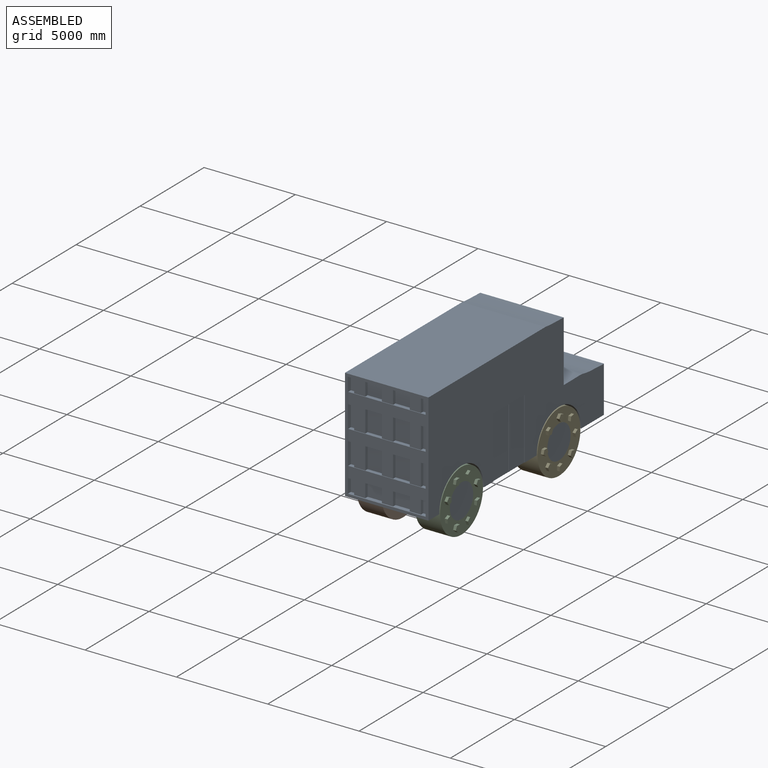
[diagram: assembled view]
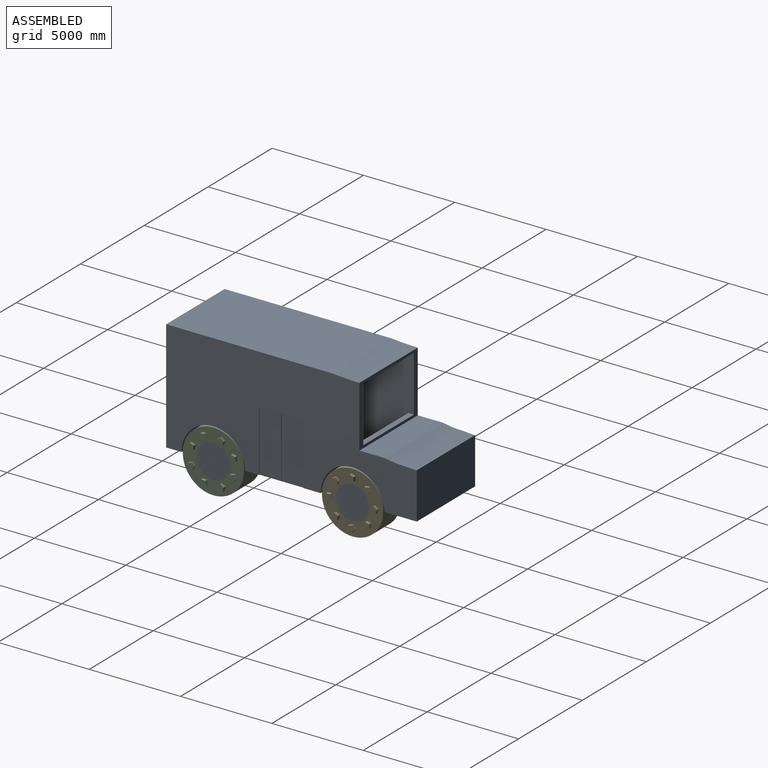
[diagram: assembled view, second angle]
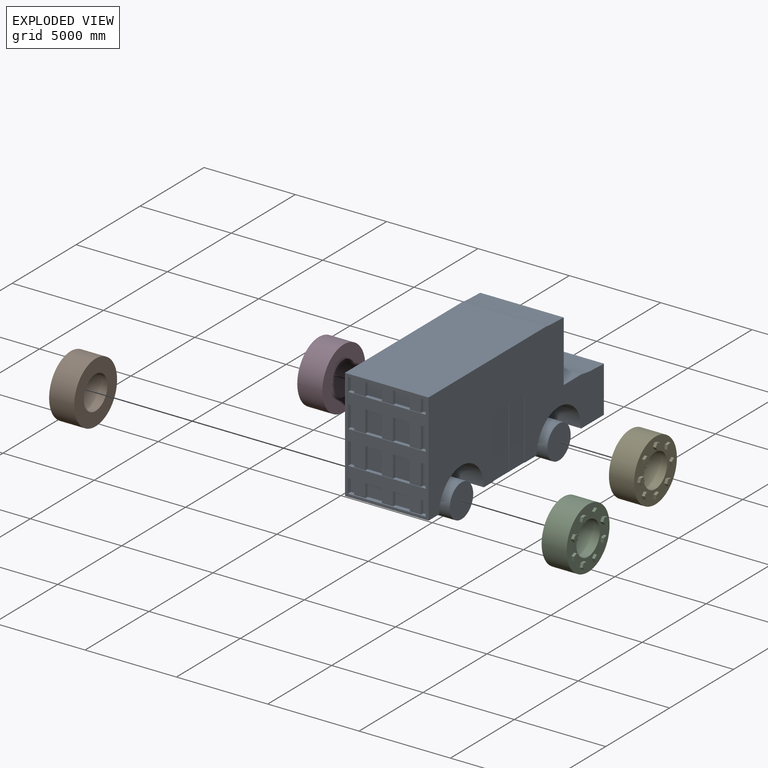
[diagram: exploded view]
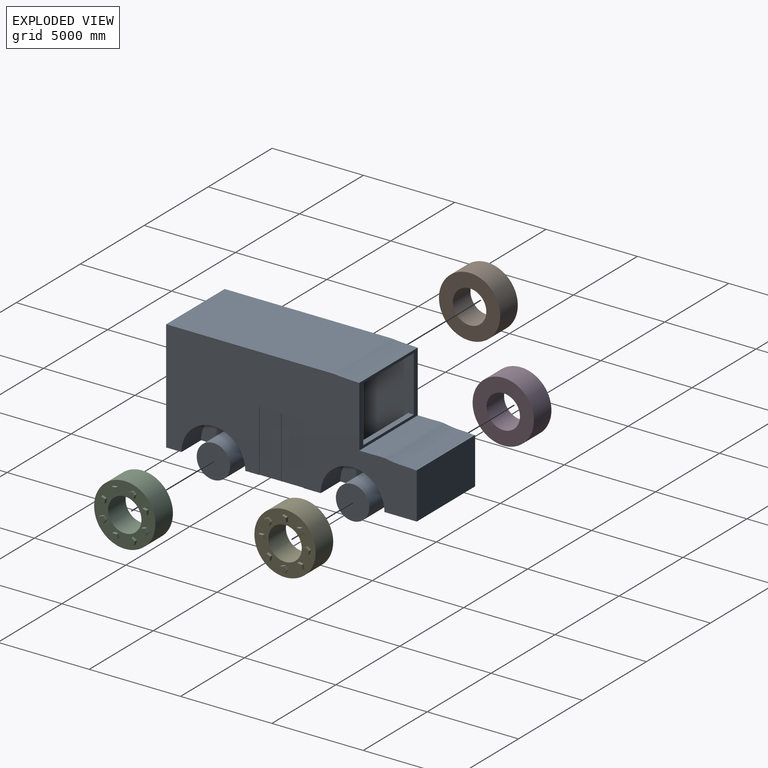
[diagram: exploded view, second angle]
ASSEMBLY  parts=5 mates=4
PART A: 134 faces, bbox 4572x13726.5x7039.7 mm
  f0: plane 1219.2x304.8mm, normal (0,-1,0), area 371612.2mm2, adj f14,f17,f92,f130
  f1: plane 1219.2x304.8mm, normal (0,-1,0), area 371612.2mm2, adj f15,f18,f92,f127
  f2: plane 762x304.8mm, normal (0,-1,0), area 232257.6mm2, adj f4,f13,f92,f131
  f3: plane 762x304.8mm, normal (0,-1,0), area 232257.6mm2, adj f16,f92,f93,f124
  f4: plane 4267.2x243.84mm, normal (0,0,-1), area 706063.1mm2, adj f2,f7,f11,f20,f22,f23,f92,f107
  f5: plane 1219.2x914.4mm, normal (0,-1,0), area 1114836.5mm2, adj f14,f17,f118,f129
  f6: plane 1219.2x914.4mm, normal (0,-1,0), area 1114836.5mm2, adj f15,f18,f115,f126
  f7: plane 914.4x762mm, normal (0,-1,0), area 696772.8mm2, adj f4,f13,f119,f132
  f8: plane 914.4x762mm, normal (0,-1,0), area 696772.8mm2, adj f16,f93,f112,f123
  f9: plane 1219.2x914.4mm, normal (0,-1,0), area 1114836.5mm2, adj f14,f17,f102,f117
  f10: plane 1219.2x914.4mm, normal (0,-1,0), area 1114836.5mm2, adj f15,f18,f99,f114
  f11: plane 914.4x762mm, normal (0,-1,0), area 696772.8mm2, adj f4,f13,f108,f120
  f12: plane 914.4x762mm, normal (0,-1,0), area 696772.8mm2, adj f16,f93,f105,f111
  f13: plane 4267.2x213.36mm, normal (0,0,1), area 575998.8mm2, adj f2,f7,f11,f20,f22,f92,f95,f107
  f14: plane 4267.2x213.36mm, normal (0,0,-1), area 575998.8mm2, adj f0,f5,f9,f19,f20,f92,f95,f101
  f15: plane 4267.2x213.36mm, normal (0,0,1), area 575998.8mm2, adj f1,f6,f10,f20,f21,f92,f96,f98
  f16: plane 4267.2x213.36mm, normal (0,0,-1), area 575998.8mm2, adj f3,f8,f12,f20,f92,f94,f96,f104
  f17: plane 4267.2x213.36mm, normal (0,0,1), area 575998.8mm2, adj f0,f5,f9,f19,f20,f92,f97,f101
  f18: plane 4267.2x213.36mm, normal (0,0,-1), area 575998.8mm2, adj f1,f6,f10,f20,f21,f92,f97,f98
  f19: plane 1219.2x304.8mm, normal (0,-1,0), area 371612.2mm2, adj f14,f17,f20,f103
  f20: plane 5791.2x243.84mm, normal (1,0,0), area 1021933.4mm2, adj f4,f13,f14,f15,f16,f17,f18,f19
  f21: plane 1219.2x304.8mm, normal (0,-1,0), area 371612.2mm2, adj f15,f18,f20,f100
  f22: plane 762x304.8mm, normal (0,-1,0), area 232257.6mm2, adj f4,f13,f20,f107
  f23: plane 6096x4572mm, normal (0,-1,0), area 3158703.4mm2, adj f4,f20,f26,f27,f61,f65,f92,f93
  f24: plane 1218.81x30.48mm, normal (0,0,-1), area 37149.3mm2, adj f26,f87,f88,f91
  f25: plane 3352.8x1219.2mm, normal (1,0,0), area 4087737.4mm2, adj f27,f86,f89,f90
  f26: plane 13726.52x6125.28mm, normal (1,0,0), area 54902468.1mm2, adj f23,f24,f27,f60,f61,f62,f68,f69
  f27: plane 13716x4572mm, normal (0,0,-1), area 41379025.9mm2, adj f23,f25,f26,f62,f63,f64,f65,f66
  f28: plane 3962.4x454.37mm, normal (0,-1,0), area 1800387.9mm2, adj f29,f34,f55,f59
  f29: plane 13106.4x5566.17mm, normal (-1,0,0), area 51219200.6mm2, adj f28,f30,f31,f37,f38,f39,f40,f55
  f30: plane 8833.9x3962.4mm, normal (0,0,-1), area 35003456mm2, adj f29,f34,f38,f56
  f31: plane 3962.4x1931mm, normal (0,-1,0), area 7651385.6mm2, adj f29,f34,f37,f55
  f32: plane 4050.9x1743.46mm, normal (1,0,0), area 5117812.8mm2, adj f37,f47,f53
  f33: plane 4050.9x1743.46mm, normal (1,0,0), area 5117812.8mm2, adj f37,f48,f50
  f34: plane 13106.4x5566.17mm, normal (1,0,0), area 51219200.6mm2, adj f28,f30,f31,f37,f38,f47,f48,f55
  f35: plane 4050.9x1743.46mm, normal (-1,0,0), area 5117812.8mm2, adj f37,f39,f44
  f36: plane 4050.9x1743.46mm, normal (-1,0,0), area 5117812.8mm2, adj f37,f40,f41
  f37: plane 13106.4x3962.4mm, normal (0,0,1), area 29813111.8mm2, adj f29,f31,f32,f33,f34,f35,f36,f38
  f38: plane 5486.4x3962.4mm, normal (0,1,0), area 21739311.4mm2, adj f29,f30,f34,f37
  f39: cylinder r=2048.26mm len=4050.9mm, axis (1,0,0), area 8874120.1mm2, adj f29,f35,f37
  f40: cylinder r=2048.26mm len=4050.9mm, axis (1,0,0), area 8874120.1mm2, adj f29,f36,f37
  f41: cylinder r=609.6mm len=1524mm, axis (-1,0,0), area 4280664.8mm2, adj f36,f37,f42,f43
  f42: plane 1219.2x1219.2mm, normal (-1,0,0), area 1167454mm2, adj f41
  f43: plane 1219.2x914.4mm, normal (1,0,0), area 939215.5mm2, adj f37,f41
  f44: cylinder r=609.6mm len=1524mm, axis (-1,0,0), area 4280664.8mm2, adj f35,f37,f45,f46
  f45: plane 1219.2x1219.2mm, normal (-1,0,0), area 1167454mm2, adj f44
  f46: plane 1219.2x914.4mm, normal (1,0,0), area 939215.5mm2, adj f37,f44
  f47: cylinder r=2048.26mm len=4050.9mm, axis (-1,0,0), area 8874120.1mm2, adj f32,f34,f37
  f48: cylinder r=2048.26mm len=4050.9mm, axis (-1,0,0), area 8874120.1mm2, adj f33,f34,f37
  f49: plane 1219.2x914.4mm, normal (-1,0,0), area 939215.5mm2, adj f37,f50
  f50: cylinder r=609.6mm len=1524mm, axis (1,0,0), area 4280664.8mm2, adj f33,f37,f49,f51
  f51: plane 1219.2x1219.2mm, normal (1,0,0), area 1167454mm2, adj f50
  f52: plane 1219.2x914.4mm, normal (-1,0,0), area 939215.5mm2, adj f37,f53
  f53: cylinder r=609.6mm len=1524mm, axis (1,0,0), area 4280664.8mm2, adj f32,f37,f52,f54
  f54: plane 1219.2x1219.2mm, normal (1,0,0), area 1167454mm2, adj f53
  f55: extruded ~3962.4x3142.39mm, area 12534919.1mm2, adj f28,f29,f31,f34
  f56: extruded ~3962.4x1130.11mm, area 4487176.9mm2, adj f29,f30,f34,f57
  f57: plane 3962.4x147.22mm, normal (0,1,0), area 583361.9mm2, adj f29,f34,f56,f58
  f58: plane 3962.4x304.8mm, normal (0,0,-1), area 1207739.5mm2, adj f29,f34,f57,f60
  f59: plane 3962.4x304.8mm, normal (0,0,1), area 1207739.5mm2, adj f28,f29,f34,f60
  f60: plane 4572x3347.66mm, normal (0,1,0), area 3228121.5mm2, adj f26,f29,f34,f58,f59,f65,f84,f85
  f61: plane 9157.11x4572mm, normal (0,0,1), area 41866296mm2, adj f23,f26,f65,f85
  f62: plane 4572x2536.82mm, normal (0,1,0), area 11598339mm2, adj f26,f27,f65,f84
  f63: plane 3486.91x1743.46mm, normal (-1,0,0), area 3461267.7mm2, adj f27,f76,f82
  f64: plane 3486.91x1743.46mm, normal (-1,0,0), area 3461267.7mm2, adj f27,f77,f79
  f65: plane 13726.52x6125.28mm, normal (-1,0,0), area 63076624.6mm2, adj f23,f27,f60,f61,f62,f76,f77,f84
  f66: plane 3486.91x1743.46mm, normal (1,0,0), area 3461267.7mm2, adj f27,f68,f73
  f67: plane 3486.91x1743.46mm, normal (1,0,0), area 3461267.7mm2, adj f27,f69,f70
  f68: cylinder r=1743.46mm len=3486.91mm, axis (1,0,0), area 8347296.3mm2, adj f26,f27,f66
  f69: cylinder r=1743.46mm len=3486.91mm, axis (1,0,0), area 8347296.3mm2, adj f26,f27,f67
  f70: cylinder r=914.4mm len=1828.8mm, axis (-1,0,0), area 8755905.2mm2, adj f67,f71,f72
  f71: plane 1828.8x1828.8mm, normal (1,0,0), area 2626771.6mm2, adj f70
  f72: plane 1828.8x914.4mm, normal (-1,0,0), area 1313385.8mm2, adj f27,f70
  f73: cylinder r=914.4mm len=1828.8mm, axis (-1,0,0), area 8755905.2mm2, adj f66,f74,f75
  f74: plane 1828.8x1828.8mm, normal (1,0,0), area 2626771.6mm2, adj f73
  f75: plane 1828.8x914.4mm, normal (-1,0,0), area 1313385.8mm2, adj f27,f73
  f76: cylinder r=1743.46mm len=3486.91mm, axis (-1,0,0), area 8347296.3mm2, adj f27,f63,f65
  f77: cylinder r=1743.46mm len=3486.91mm, axis (-1,0,0), area 8347296.3mm2, adj f27,f64,f65
  f78: plane 1828.8x914.4mm, normal (1,0,0), area 1313385.8mm2, adj f27,f79
  f79: cylinder r=914.4mm len=1828.8mm, axis (1,0,0), area 8755905.2mm2, adj f64,f78,f80
  f80: plane 1828.8x1828.8mm, normal (-1,0,0), area 2626771.6mm2, adj f79
  f81: plane 1828.8x914.4mm, normal (1,0,0), area 1313385.8mm2, adj f27,f82
  f82: cylinder r=914.4mm len=1828.8mm, axis (1,0,0), area 8755905.2mm2, adj f63,f81,f83
  f83: plane 1828.8x1828.8mm, normal (-1,0,0), area 2626771.6mm2, adj f82
  f84: extruded ~4572x3142.39mm, area 14375402.7mm2, adj f26,f60,f62,f65
  f85: extruded ~4572x1416.5mm, area 6487571.1mm2, adj f26,f60,f61,f65
  f86: plane 1219.2x30.48mm, normal (0,0,-1), area 37161.2mm2, adj f25,f26,f89,f90
  f87: plane 3352.8x30.48mm, normal (0,-1,0), area 102193.3mm2, adj f24,f26,f27,f88
  f88: plane 3352.8x1218.81mm, normal (1,0,0), area 4086419.1mm2, adj f24,f27,f87,f91
  f89: plane 3352.8x30.48mm, normal (0,1,0), area 102193.3mm2, adj f25,f26,f27,f86
  f90: plane 3352.8x30.48mm, normal (0,-1,0), area 102193.3mm2, adj f25,f26,f27,f86
  f91: plane 3352.8x30.48mm, normal (0,1,0), area 102193.3mm2, adj f24,f26,f27,f88
  f92: plane 5791.2x243.84mm, normal (-1,0,0), area 1021933.4mm2, adj f0,f1,f2,f3,f4,f13,f14,f15
  f93: plane 4267.2x243.84mm, normal (0,0,1), area 706063.1mm2, adj f3,f8,f12,f20,f23,f92,f94,f104
  f94: plane 762x304.8mm, normal (0,-1,0), area 232257.6mm2, adj f16,f20,f93,f106
  f95: plane 4267.2x609.6mm, normal (0,-1,0), area 2601285.1mm2, adj f13,f14,f20,f92
  f96: plane 4267.2x609.6mm, normal (0,-1,0), area 2601285.1mm2, adj f15,f16,f20,f92
  f97: plane 4267.2x609.6mm, normal (0,-1,0), area 2601285.1mm2, adj f17,f18,f20,f92
  f98: plane 1219.2x609.6mm, normal (0,-1,0), area 743224.3mm2, adj f15,f18,f99,f100
  f99: plane 1219.2x182.88mm, normal (1,0,0), area 222967.3mm2, adj f10,f15,f18,f98
  f100: plane 1219.2x182.88mm, normal (-1,0,0), area 222967.3mm2, adj f15,f18,f21,f98
  f101: plane 1219.2x609.6mm, normal (0,-1,0), area 743224.3mm2, adj f14,f17,f102,f103
  f102: plane 1219.2x182.88mm, normal (1,0,0), area 222967.3mm2, adj f9,f14,f17,f101
  f103: plane 1219.2x182.88mm, normal (-1,0,0), area 222967.3mm2, adj f14,f17,f19,f101
  f104: plane 762x609.6mm, normal (0,-1,0), area 464515.2mm2, adj f16,f93,f105,f106
  f105: plane 762x182.88mm, normal (1,0,0), area 139354.6mm2, adj f12,f16,f93,f104
  f106: plane 762x182.88mm, normal (-1,0,0), area 139354.6mm2, adj f16,f93,f94,f104
  f107: plane 762x182.88mm, normal (-1,0,0), area 139354.6mm2, adj f4,f13,f22,f109
  f108: plane 762x182.88mm, normal (1,0,0), area 139354.6mm2, adj f4,f11,f13,f109
  f109: plane 762x609.6mm, normal (0,-1,0), area 464515.2mm2, adj f4,f13,f107,f108
  f110: plane 762x609.6mm, normal (0,-1,0), area 464515.2mm2, adj f16,f93,f111,f112
  f111: plane 762x182.88mm, normal (-1,0,0), area 139354.6mm2, adj f12,f16,f93,f110
  f112: plane 762x182.88mm, normal (1,0,0), area 139354.6mm2, adj f8,f16,f93,f110
  f113: plane 1219.2x609.6mm, normal (0,-1,0), area 743224.3mm2, adj f15,f18,f114,f115
  f114: plane 1219.2x182.88mm, normal (-1,0,0), area 222967.3mm2, adj f10,f15,f18,f113
  f115: plane 1219.2x182.88mm, normal (1,0,0), area 222967.3mm2, adj f6,f15,f18,f113
  f116: plane 1219.2x609.6mm, normal (0,-1,0), area 743224.3mm2, adj f14,f17,f117,f118
  f117: plane 1219.2x182.88mm, normal (-1,0,0), area 222967.3mm2, adj f9,f14,f17,f116
  f118: plane 1219.2x182.88mm, normal (1,0,0), area 222967.3mm2, adj f5,f14,f17,f116
  f119: plane 762x182.88mm, normal (1,0,0), area 139354.6mm2, adj f4,f7,f13,f121
  f120: plane 762x182.88mm, normal (-1,0,0), area 139354.6mm2, adj f4,f11,f13,f121
  f121: plane 762x609.6mm, normal (0,-1,0), area 464515.2mm2, adj f4,f13,f119,f120
  f122: plane 762x609.6mm, normal (0,-1,0), area 464515.2mm2, adj f16,f93,f123,f124
  f123: plane 762x182.88mm, normal (-1,0,0), area 139354.6mm2, adj f8,f16,f93,f122
  f124: plane 762x182.88mm, normal (1,0,0), area 139354.6mm2, adj f3,f16,f93,f122
  f125: plane 1219.2x609.6mm, normal (0,-1,0), area 743224.3mm2, adj f15,f18,f126,f127
  f126: plane 1219.2x182.88mm, normal (-1,0,0), area 222967.3mm2, adj f6,f15,f18,f125
  f127: plane 1219.2x182.88mm, normal (1,0,0), area 222967.3mm2, adj f1,f15,f18,f125
  f128: plane 1219.2x609.6mm, normal (0,-1,0), area 743224.3mm2, adj f14,f17,f129,f130
  f129: plane 1219.2x182.88mm, normal (-1,0,0), area 222967.3mm2, adj f5,f14,f17,f128
  f130: plane 1219.2x182.88mm, normal (1,0,0), area 222967.3mm2, adj f0,f14,f17,f128
  f131: plane 762x182.88mm, normal (1,0,0), area 139354.6mm2, adj f2,f4,f13,f133
  f132: plane 762x182.88mm, normal (-1,0,0), area 139354.6mm2, adj f4,f7,f13,f133
  f133: plane 762x609.6mm, normal (0,-1,0), area 464515.2mm2, adj f4,f13,f131,f132
PART B: 52 faces, bbox 3352.8x1524x3352.8 mm
  f0: plane 3352.8x3352.8mm, normal (0,-1,0), area 5463211.8mm2, adj f1,f2,f4,f5,f6,f7,f8,f10
  f1: cylinder r=914.4mm len=1828.8mm, axis (0,1,0), area 7880314.7mm2, adj f0,f3
  f2: cylinder r=1676.4mm len=3352.8mm, axis (0,1,0), area 14447243.6mm2, adj f0,f3
  f3: plane 3352.8x3352.8mm, normal (0,1,0), area 6202099.5mm2, adj f1,f2
  f4: plane 220.36x152.4mm, normal (0.31,0,-0.95), area 35310.6mm2, adj f0,f5,f8,f9
  f5: plane 231.7x152.4mm, normal (1,0,0), area 35310.6mm2, adj f0,f4,f6,f9
  f6: plane 220.36x152.4mm, normal (0.31,0,0.95), area 35310.6mm2, adj f0,f5,f7,f9
  f7: plane 187.45x152.4mm, normal (-0.81,0,0.59), area 35310.6mm2, adj f0,f6,f8,f9
  f8: plane 187.45x152.4mm, normal (-0.81,0,-0.59), area 35310.6mm2, adj f0,f4,f7,f9
  f9: plane 374.89x356.54mm, normal (0,-1,0), area 92361mm2, adj f4,f5,f6,f7,f8
  f10: plane 163.83x163.83mm, normal (0.71,0,0.71), area 35310.6mm2, adj f0,f11,f14,f15
  f11: plane 206.44x152.4mm, normal (-0.45,0,0.89), area 35310.6mm2, adj f0,f10,f12,f15
  f12: plane 228.84x152.4mm, normal (-0.99,0,-0.16), area 35310.6mm2, adj f0,f11,f13,f15
  f13: plane 228.84x152.4mm, normal (-0.16,0,-0.99), area 35310.6mm2, adj f0,f12,f14,f15
  f14: plane 206.44x152.4mm, normal (0.89,0,-0.45), area 35310.6mm2, adj f0,f10,f13,f15
  f15: plane 370.28x370.28mm, normal (0,-1,0), area 92361mm2, adj f10,f11,f12,f13,f14
  f16: plane 231.7x152.4mm, normal (0,0,1), area 35310.6mm2, adj f0,f17,f20,f21
  f17: plane 220.36x152.4mm, normal (-0.95,0,0.31), area 35310.6mm2, adj f0,f16,f18,f21
  f18: plane 187.45x152.4mm, normal (-0.59,0,-0.81), area 35310.6mm2, adj f0,f17,f19,f21
  f19: plane 187.45x152.4mm, normal (0.59,0,-0.81), area 35310.6mm2, adj f0,f18,f20,f21
  f20: plane 220.36x152.4mm, normal (0.95,0,0.31), area 35310.6mm2, adj f0,f16,f19,f21
  f21: plane 374.89x356.54mm, normal (0,-1,0), area 92361mm2, adj f16,f17,f18,f19,f20
  f22: plane 163.83x163.83mm, normal (-0.71,0,0.71), area 35310.6mm2, adj f0,f23,f26,f27
  f23: plane 206.44x152.4mm, normal (-0.89,0,-0.45), area 35310.6mm2, adj f0,f22,f24,f27
  f24: plane 228.84x152.4mm, normal (0.16,0,-0.99), area 35310.6mm2, adj f0,f23,f25,f27
  f25: plane 228.84x152.4mm, normal (0.99,0,-0.16), area 35310.6mm2, adj f0,f24,f26,f27
  f26: plane 206.44x152.4mm, normal (0.45,0,0.89), area 35310.6mm2, adj f0,f22,f25,f27
  f27: plane 370.28x370.28mm, normal (0,-1,0), area 92361mm2, adj f22,f23,f24,f25,f26
  f28: plane 231.7x152.4mm, normal (-1,0,0), area 35310.6mm2, adj f0,f29,f32,f33
  f29: plane 220.36x152.4mm, normal (-0.31,0,-0.95), area 35310.6mm2, adj f0,f28,f30,f33
  f30: plane 187.45x152.4mm, normal (0.81,0,-0.59), area 35310.6mm2, adj f0,f29,f31,f33
  f31: plane 187.45x152.4mm, normal (0.81,0,0.59), area 35310.6mm2, adj f0,f30,f32,f33
  f32: plane 220.36x152.4mm, normal (-0.31,0,0.95), area 35310.6mm2, adj f0,f28,f31,f33
  f33: plane 374.89x356.54mm, normal (0,-1,0), area 92361mm2, adj f28,f29,f30,f31,f32
  f34: plane 163.83x163.83mm, normal (-0.71,0,-0.71), area 35310.6mm2, adj f0,f35,f38,f39
  f35: plane 206.44x152.4mm, normal (0.45,0,-0.89), area 35310.6mm2, adj f0,f34,f36,f39
  f36: plane 228.84x152.4mm, normal (0.99,0,0.16), area 35310.6mm2, adj f0,f35,f37,f39
  f37: plane 228.84x152.4mm, normal (0.16,0,0.99), area 35310.6mm2, adj f0,f36,f38,f39
  f38: plane 206.44x152.4mm, normal (-0.89,0,0.45), area 35310.6mm2, adj f0,f34,f37,f39
  f39: plane 370.28x370.28mm, normal (0,-1,0), area 92361mm2, adj f34,f35,f36,f37,f38
  f40: plane 231.7x152.4mm, normal (0,0,-1), area 35310.6mm2, adj f0,f41,f44,f45
  f41: plane 220.36x152.4mm, normal (0.95,0,-0.31), area 35310.6mm2, adj f0,f40,f42,f45
  f42: plane 187.45x152.4mm, normal (0.59,0,0.81), area 35310.6mm2, adj f0,f41,f43,f45
  f43: plane 187.45x152.4mm, normal (-0.59,0,0.81), area 35310.6mm2, adj f0,f42,f44,f45
  f44: plane 220.36x152.4mm, normal (-0.95,0,-0.31), area 35310.6mm2, adj f0,f40,f43,f45
  f45: plane 374.89x356.54mm, normal (0,-1,0), area 92361mm2, adj f40,f41,f42,f43,f44
  f46: plane 163.83x163.83mm, normal (0.71,0,-0.71), area 35310.6mm2, adj f0,f47,f50,f51
  f47: plane 206.44x152.4mm, normal (0.89,0,0.45), area 35310.6mm2, adj f0,f46,f48,f51
  f48: plane 228.84x152.4mm, normal (-0.16,0,0.99), area 35310.6mm2, adj f0,f47,f49,f51
  f49: plane 228.84x152.4mm, normal (-0.99,0,0.16), area 35310.6mm2, adj f0,f48,f50,f51
  f50: plane 206.44x152.4mm, normal (-0.45,0,-0.89), area 35310.6mm2, adj f0,f46,f49,f51
  f51: plane 370.28x370.28mm, normal (0,-1,0), area 92361mm2, adj f46,f47,f48,f49,f50
PART C: same geometry as B
PART D: same geometry as B
PART E: same geometry as B
PLACE A t=(-5172.21,5406.79,4151.68)mm fixed
PLACE B rot(axis=(0.35,0.35,-0.87),98.3deg) t=(-6086.61,-5724.51,1103.68)mm
PLACE C rot(axis=(0.49,-0.49,0.73),108.1deg) t=(-4257.81,-5724.51,1103.68)mm
PLACE D rot(axis=(0.58,0.58,-0.58),120deg) t=(-6086.61,1895.49,1103.68)mm
PLACE E rot(axis=(0.58,-0.58,0.58),120deg) t=(-4257.81,1895.49,1103.68)mm
MATE revolute B.f1 <-> A.f40  axis (1,0,0) through (-7458.21,-5724.51,1103.68)mm
MATE revolute D.f1 <-> A.f39  axis (-1,0,0) through (-7458.21,1895.49,1103.68)mm
MATE revolute E.f1 <-> A.f39  axis (-1,0,0) through (-2886.21,1895.49,1103.68)mm
MATE revolute C.f1 <-> A.f40  axis (-1,0,0) through (-2886.21,-5724.51,1103.68)mm
